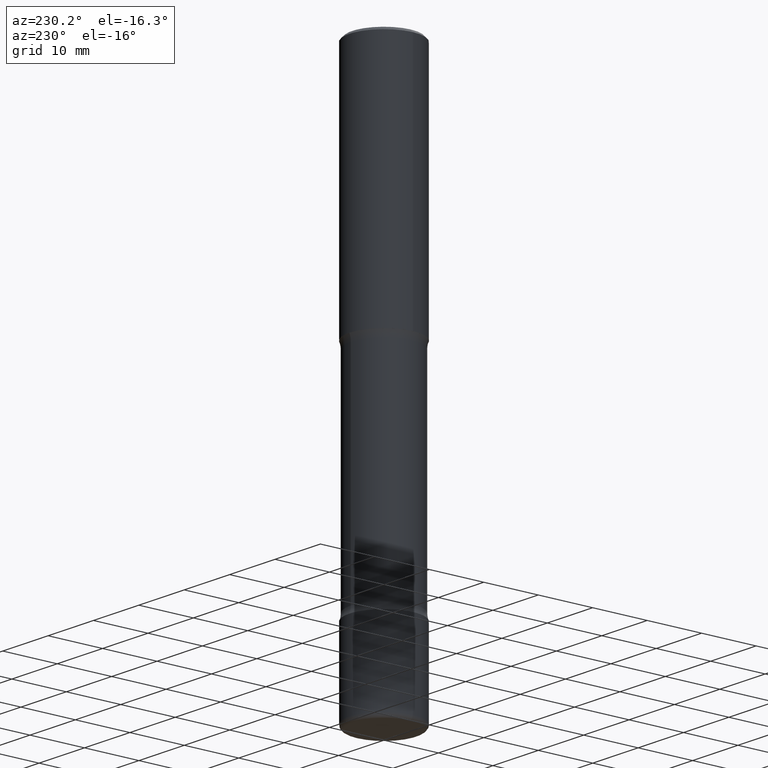
[diagram: clean part render]
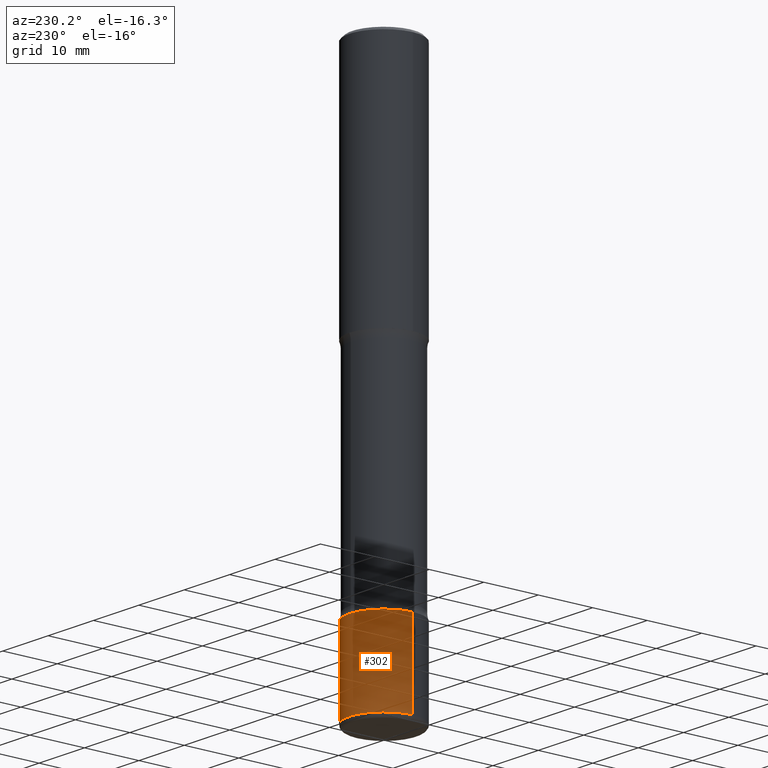
[diagram: same view with one face highlighted and labeled with its STEP entity id]
A machine part, auxiliary view. The second image highlights one B-rep face of the part: STEP entity #302.
In plain terms, the highlighted cylindrical surface (partial cylindrical patch) has radius 6.35 mm, axis along (-0, 0, 1).
Its self-contained STEP definition (entity closure, byte-faithful):
#2 = VECTOR ( 'NONE', #270, 39.37007874015748143 ) ;
#9 = ORIENTED_EDGE ( 'NONE', *, *, #303, .F. ) ;
#33 = EDGE_LOOP ( 'NONE', ( #120, #333, #360, #9 ) ) ;
#39 = CARTESIAN_POINT ( 'NONE',  ( 8.253457220874836014E-29, -1.178374951859561452E-14, -3.375000000000000000 ) ) ;
#51 = DIRECTION ( 'NONE',  ( -2.445468806185136597E-29, 3.491481338843145583E-15, 1.000000000000000000 ) ) ;
#70 = DIRECTION ( 'NONE',  ( -2.445468806185136597E-29, 3.491481338843145583E-15, 1.000000000000000000 ) ) ;
#97 = VERTEX_POINT ( 'NONE', #117 ) ;
#116 = LINE ( 'NONE', #201, #172 ) ;
#117 = CARTESIAN_POINT ( 'NONE',  ( -0.2500000000000003331, -1.104610837750119891E-14, -3.375000000000000000 ) ) ;
#120 = ORIENTED_EDGE ( 'NONE', *, *, #254, .T. ) ;
#128 = EDGE_CURVE ( 'NONE', #502, #97, #404, .T. ) ;
#145 = DIRECTION ( 'NONE',  ( 1.000000000000000000, -6.982962677686267499E-15, 0.000000000000000000 ) ) ;
#172 = VECTOR ( 'NONE', #258, 39.37007874015748143 ) ;
#190 = CARTESIAN_POINT ( 'NONE',  ( 0.000000000000000000, 0.000000000000000000, 0.000000000000000000 ) ) ;
#201 = CARTESIAN_POINT ( 'NONE',  ( -0.2500000000000003331, 1.776356839400252831E-15, -1.229733772563727987E-29 ) ) ;
#216 = CIRCLE ( 'NONE', #242, 0.2500000000000003886 ) ;
#231 = CARTESIAN_POINT ( 'NONE',  ( 0.2500000000000003331, -1.352949018801718435E-14, -3.375000000000000000 ) ) ;
#242 = AXIS2_PLACEMENT_3D ( 'NONE', #442, #51, #145 ) ;
#254 = EDGE_CURVE ( 'NONE', #339, #413, #216, .T. ) ;
#258 = DIRECTION ( 'NONE',  ( -2.445468806185136877E-29, 3.491481338843145188E-15, 1.000000000000000000 ) ) ;
#270 = DIRECTION ( 'NONE',  ( -2.445468806185136877E-29, 3.491481338843145188E-15, 1.000000000000000000 ) ) ;
#273 = CARTESIAN_POINT ( 'NONE',  ( 0.2500000000000003331, -1.560692158462885722E-14, -3.969999999999999307 ) ) ;
#279 = LINE ( 'NONE', #374, #2 ) ;
#287 = DIRECTION ( 'NONE',  ( -2.445468806185136597E-29, 3.491481338843145583E-15, 1.000000000000000000 ) ) ;
#302 = ADVANCED_FACE ( 'NONE', ( #541 ), #403, .T. ) ;
#303 = EDGE_CURVE ( 'NONE', #339, #502, #279, .T. ) ;
#333 = ORIENTED_EDGE ( 'NONE', *, *, #529, .T. ) ;
#339 = VERTEX_POINT ( 'NONE', #273 ) ;
#360 = ORIENTED_EDGE ( 'NONE', *, *, #128, .F. ) ;
#366 = AXIS2_PLACEMENT_3D ( 'NONE', #39, #70, #427 ) ;
#374 = CARTESIAN_POINT ( 'NONE',  ( 0.2500000000000003331, -1.745740669421569044E-15, 1.219044193948985630E-29 ) ) ;
#403 = CYLINDRICAL_SURFACE ( 'NONE', #428, 0.2500000000000003331 ) ;
#404 = CIRCLE ( 'NONE', #366, 0.2500000000000003331 ) ;
#413 = VERTEX_POINT ( 'NONE', #448 ) ;
#415 = DIRECTION ( 'NONE',  ( 1.000000000000000000, -6.982962677686266711E-15, 4.876176775795935793E-29 ) ) ;
#427 = DIRECTION ( 'NONE',  ( 1.000000000000000000, -6.982962677686269077E-15, 0.000000000000000000 ) ) ;
#428 = AXIS2_PLACEMENT_3D ( 'NONE', #190, #287, #415 ) ;
#442 = CARTESIAN_POINT ( 'NONE',  ( 9.708511160554990630E-29, -1.386118091520728581E-14, -3.969999999999999307 ) ) ;
#448 = CARTESIAN_POINT ( 'NONE',  ( -0.2500000000000003331, -1.208482407580703376E-14, -3.969999999999999307 ) ) ;
#502 = VERTEX_POINT ( 'NONE', #231 ) ;
#529 = EDGE_CURVE ( 'NONE', #413, #97, #116, .T. ) ;
#541 = FACE_OUTER_BOUND ( 'NONE', #33, .T. ) ;